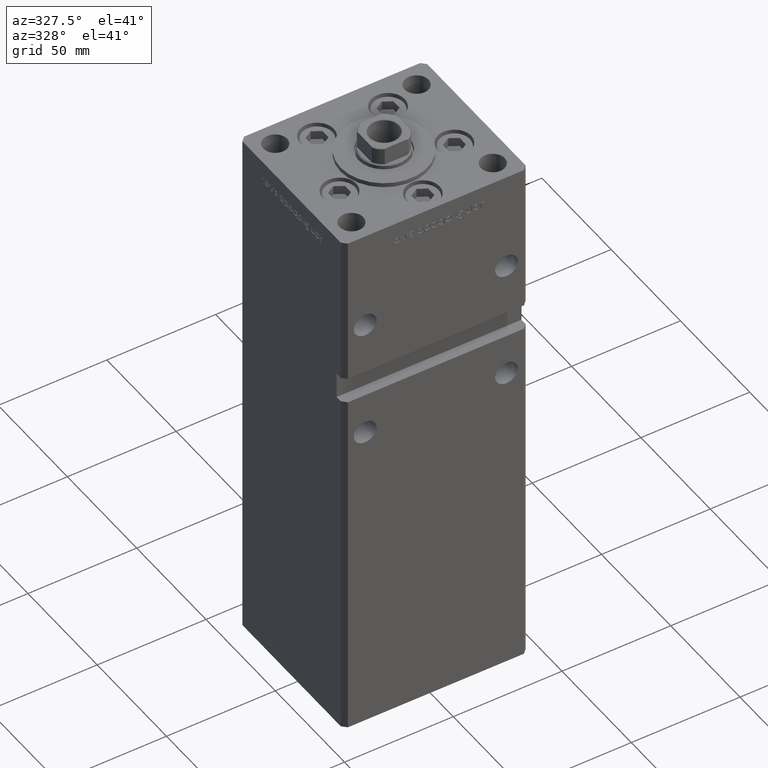
[diagram: clean part render]
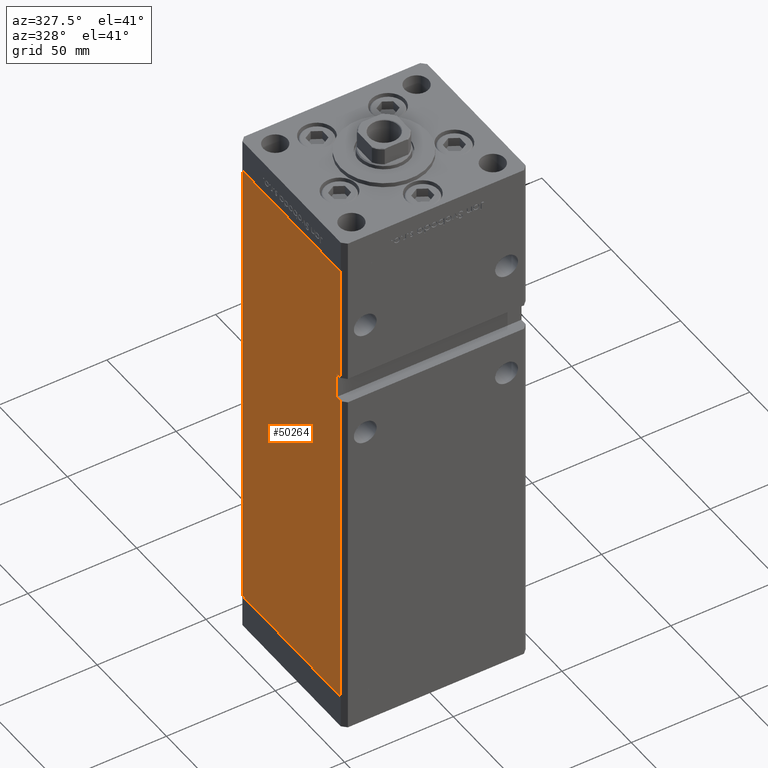
[diagram: same view with one face highlighted and labeled with its STEP entity id]
A machine part, auxiliary view. The second image highlights one B-rep face of the part: STEP entity #50264.
In plain terms, the highlighted planar face has unit normal (1, 0, 0).
Its self-contained STEP definition (entity closure, byte-faithful):
#2034 = EDGE_LOOP ( 'NONE', ( #24187, #48683, #41230, #48619, #12048, #25573, #25955, #25506 ) ) ;
#2061 = VECTOR ( 'NONE', #9282, 1000.000000000000000 ) ;
#5146 = CARTESIAN_POINT ( 'NONE',  ( -42.49999999999998579, -35.49999999999996447, 152.0000000000000284 ) ) ;
#5608 = EDGE_CURVE ( 'NONE', #24990, #15023, #40075, .T. ) ;
#5834 = VECTOR ( 'NONE', #47948, 1000.000000000000000 ) ;
#6364 = VERTEX_POINT ( 'NONE', #48433 ) ;
#7155 = AXIS2_PLACEMENT_3D ( 'NONE', #36130, #15724, #20283 ) ;
#7890 = CARTESIAN_POINT ( 'NONE',  ( -42.50000000000001421, 35.50000000000000711, 0.000000000000000000 ) ) ;
#9282 = DIRECTION ( 'NONE',  ( -0.000000000000000000, -0.000000000000000000, -1.000000000000000000 ) ) ;
#9507 = CARTESIAN_POINT ( 'NONE',  ( -42.50000000000001421, 35.50000000000000711, 218.5000000000000000 ) ) ;
#10152 = CARTESIAN_POINT ( 'NONE',  ( -42.49999999999998579, -32.50000000000000711, 152.0000000000000284 ) ) ;
#10408 = CARTESIAN_POINT ( 'NONE',  ( -42.49999999999998579, -35.50000000000000711, 218.5000000000000000 ) ) ;
#10652 = VECTOR ( 'NONE', #50682, 1000.000000000000000 ) ;
#10869 = VERTEX_POINT ( 'NONE', #14610 ) ;
#11504 = CARTESIAN_POINT ( 'NONE',  ( -42.49999999999998579, -32.50000000000000711, 164.0000000000000284 ) ) ;
#11897 = LINE ( 'NONE', #41177, #46211 ) ;
#12048 = ORIENTED_EDGE ( 'NONE', *, *, #18428, .F. ) ;
#13222 = EDGE_CURVE ( 'NONE', #35972, #6364, #31921, .T. ) ;
#14610 = CARTESIAN_POINT ( 'NONE',  ( -42.49999999999998579, -35.50000000000000711, 0.000000000000000000 ) ) ;
#14910 = CARTESIAN_POINT ( 'NONE',  ( -42.49999999999998579, -35.50000000000000711, 218.5000000000000000 ) ) ;
#15023 = VERTEX_POINT ( 'NONE', #10408 ) ;
#15724 = DIRECTION ( 'NONE',  ( 1.000000000000000000, 3.909236002201255146E-16, -0.000000000000000000 ) ) ;
#15792 = DIRECTION ( 'NONE',  ( -0.000000000000000000, -1.000000000000000000, -0.000000000000000000 ) ) ;
#16504 = EDGE_CURVE ( 'NONE', #48579, #10869, #35334, .T. ) ;
#16979 = EDGE_CURVE ( 'NONE', #43853, #48579, #42924, .T. ) ;
#18428 = EDGE_CURVE ( 'NONE', #15023, #6364, #11897, .T. ) ;
#19481 = VECTOR ( 'NONE', #15792, 1000.000000000000000 ) ;
#19746 = FACE_OUTER_BOUND ( 'NONE', #2034, .T. ) ;
#20283 = DIRECTION ( 'NONE',  ( -3.909236002201255146E-16, 1.000000000000000000, 0.000000000000000000 ) ) ;
#21164 = CARTESIAN_POINT ( 'NONE',  ( -42.49999999999998579, -32.50000000000000711, 164.0000000000000284 ) ) ;
#22497 = DIRECTION ( 'NONE',  ( -0.000000000000000000, -1.000000000000000000, -0.000000000000000000 ) ) ;
#24187 = ORIENTED_EDGE ( 'NONE', *, *, #16504, .F. ) ;
#24212 = CARTESIAN_POINT ( 'NONE',  ( -42.50000000000001421, 35.50000000000000711, 218.5000000000000000 ) ) ;
#24990 = VERTEX_POINT ( 'NONE', #9507 ) ;
#25506 = ORIENTED_EDGE ( 'NONE', *, *, #47051, .T. ) ;
#25573 = ORIENTED_EDGE ( 'NONE', *, *, #5608, .F. ) ;
#25955 = ORIENTED_EDGE ( 'NONE', *, *, #37915, .T. ) ;
#28579 = VECTOR ( 'NONE', #35648, 1000.000000000000000 ) ;
#29150 = VECTOR ( 'NONE', #35774, 1000.000000000000000 ) ;
#31921 = LINE ( 'NONE', #11504, #19481 ) ;
#33294 = VERTEX_POINT ( 'NONE', #7890 ) ;
#33794 = LINE ( 'NONE', #46665, #10652 ) ;
#34067 = CARTESIAN_POINT ( 'NONE',  ( -42.49999999999998579, -32.50000000000000711, 152.0000000000000284 ) ) ;
#35334 = LINE ( 'NONE', #14910, #5834 ) ;
#35648 = DIRECTION ( 'NONE',  ( -5.782411586589351722E-16, 0.000000000000000000, -1.000000000000000000 ) ) ;
#35774 = DIRECTION ( 'NONE',  ( 3.909236002201255146E-16, -1.000000000000000000, 0.000000000000000000 ) ) ;
#35904 = CARTESIAN_POINT ( 'NONE',  ( -42.49999999999998579, -32.50000000000000711, 164.0000000000000284 ) ) ;
#35972 = VERTEX_POINT ( 'NONE', #21164 ) ;
#36130 = CARTESIAN_POINT ( 'NONE',  ( -42.50000000000001421, 35.50000000000000711, 218.5000000000000000 ) ) ;
#36603 = DIRECTION ( 'NONE',  ( -0.000000000000000000, -0.000000000000000000, -1.000000000000000000 ) ) ;
#37623 = VECTOR ( 'NONE', #22497, 1000.000000000000000 ) ;
#37750 = LINE ( 'NONE', #46075, #2061 ) ;
#37915 = EDGE_CURVE ( 'NONE', #24990, #33294, #37750, .T. ) ;
#40075 = LINE ( 'NONE', #24212, #29150 ) ;
#40440 = PLANE ( 'NONE',  #7155 ) ;
#41177 = CARTESIAN_POINT ( 'NONE',  ( -42.49999999999998579, -35.50000000000000711, 218.5000000000000000 ) ) ;
#41230 = ORIENTED_EDGE ( 'NONE', *, *, #48089, .F. ) ;
#42924 = LINE ( 'NONE', #34067, #37623 ) ;
#43853 = VERTEX_POINT ( 'NONE', #10152 ) ;
#46075 = CARTESIAN_POINT ( 'NONE',  ( -42.50000000000001421, 35.50000000000000711, 218.5000000000000000 ) ) ;
#46211 = VECTOR ( 'NONE', #36603, 1000.000000000000000 ) ;
#46665 = CARTESIAN_POINT ( 'NONE',  ( -42.50000000000001421, 35.50000000000000711, 0.000000000000000000 ) ) ;
#47051 = EDGE_CURVE ( 'NONE', #33294, #10869, #33794, .T. ) ;
#47744 = LINE ( 'NONE', #35904, #28579 ) ;
#47948 = DIRECTION ( 'NONE',  ( -0.000000000000000000, -0.000000000000000000, -1.000000000000000000 ) ) ;
#48089 = EDGE_CURVE ( 'NONE', #35972, #43853, #47744, .T. ) ;
#48433 = CARTESIAN_POINT ( 'NONE',  ( -42.49999999999998579, -35.50000000000001421, 164.0000000000000284 ) ) ;
#48579 = VERTEX_POINT ( 'NONE', #5146 ) ;
#48619 = ORIENTED_EDGE ( 'NONE', *, *, #13222, .T. ) ;
#48683 = ORIENTED_EDGE ( 'NONE', *, *, #16979, .F. ) ;
#50264 = ADVANCED_FACE ( 'NONE', ( #19746 ), #40440, .F. ) ;
#50682 = DIRECTION ( 'NONE',  ( 3.909236002201255146E-16, -1.000000000000000000, 0.000000000000000000 ) ) ;